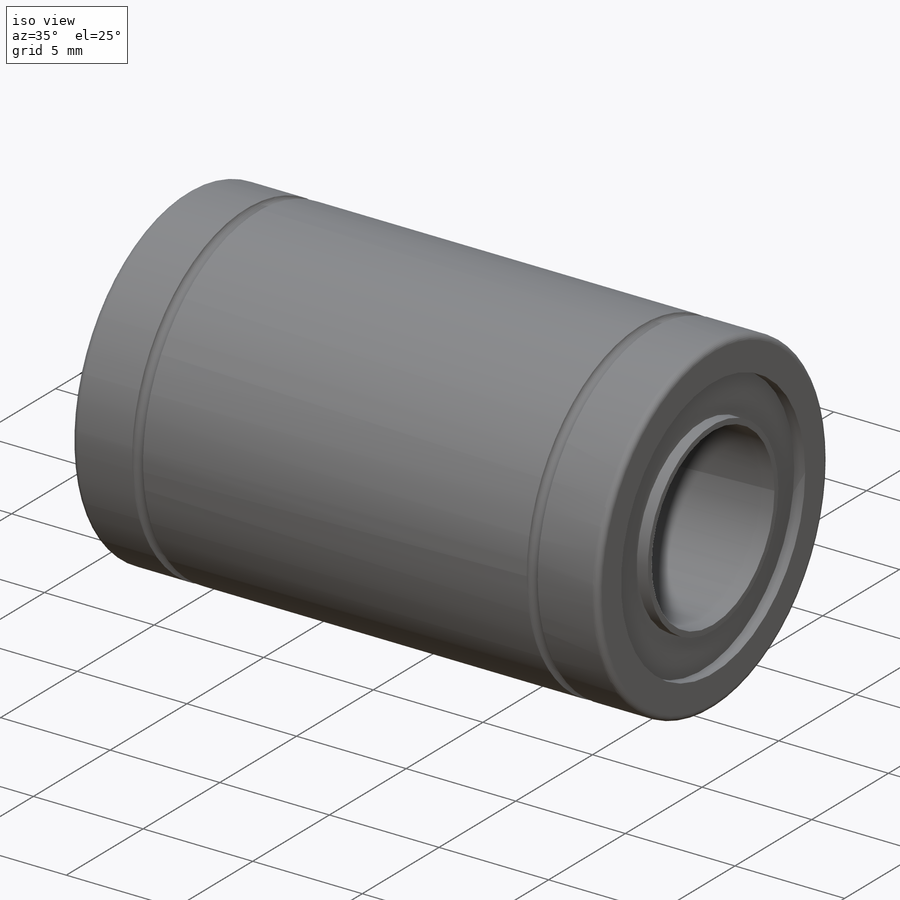
[diagram: iso view]
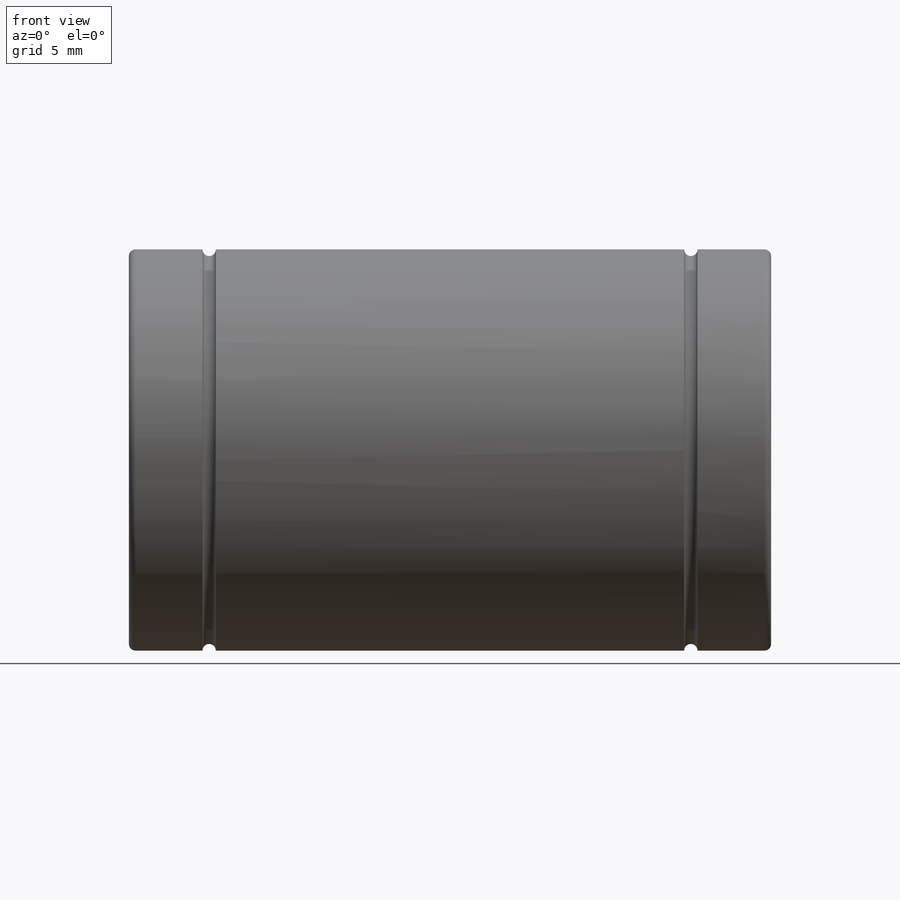
[diagram: front view]
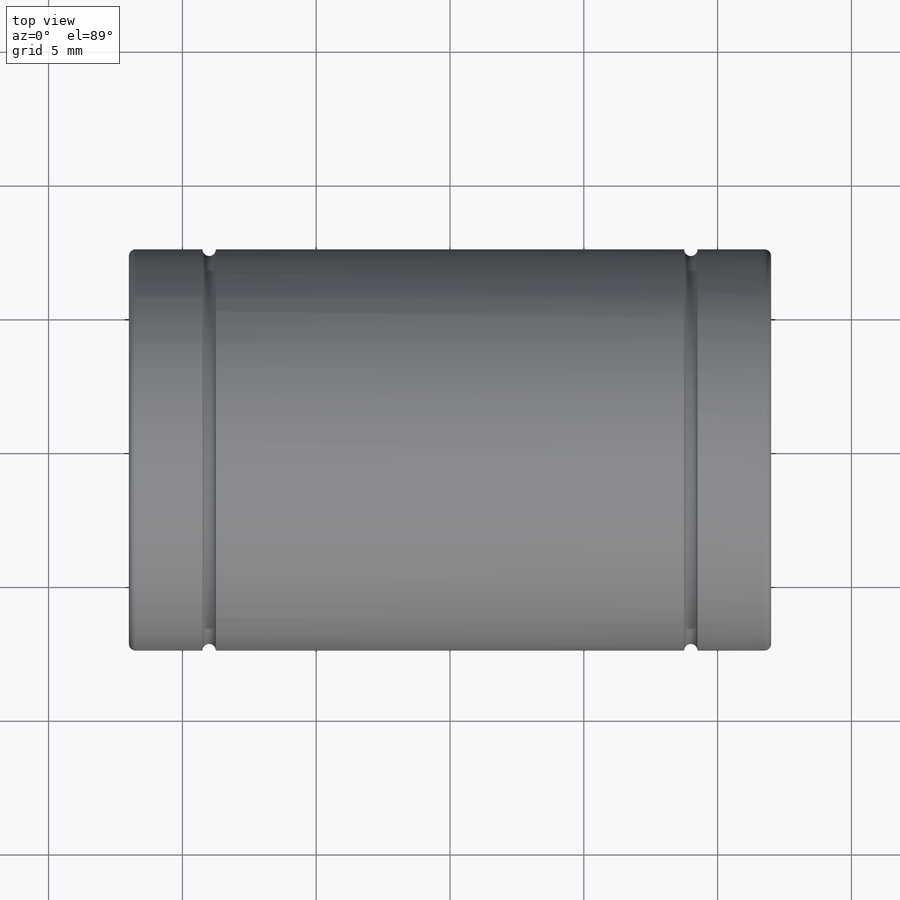
[diagram: top view]
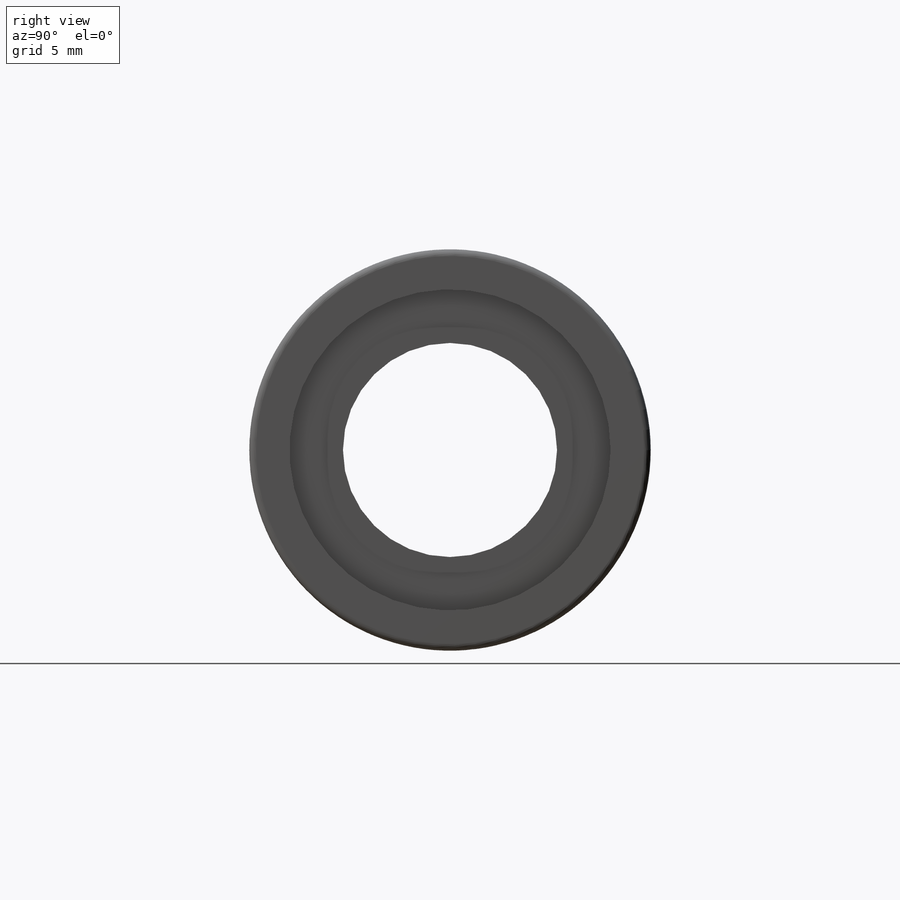
[diagram: right view]
SOLIDWORKS PART (.sldprt)
format: sldprt  version: not decoded by parser v0  size: 310,272 bytes
history: native  units: mm
features: sketch x7, extrude x3, fillet x2, plane x2, sweep x2, material x1 (+16 scaffold rows collapsed)
feature tree (33):
  scaffold x16  (default folders/planes/origin — collapsed)
  material  "Material <not specified>"
  sketch  "Sketch2"  dims[D1=~4.668258mm]
  extrude  "Extrude1"  Depth=12mm
  extrude  "Extrude2"  [1 undecoded]
  sketch  "Sketch2<4>"  dims[D1=12.0mm D2=12.0mm]
  extrude  "Extrude3"  [1 undecoded]
  sketch  "Sketch2<5>"  dims[D1=11.5mm D2=11.5mm]
  fillet  "Fillet3"  Radius=0.25mm
  fillet  "Fillet4"  Radius=0.25mm
  plane  "Plane1"  Offset=3mm
  sketch  "Sketch3"  dims[D1=~0.474213mm]
  sketch  "Sketch4"
  sweep  "Cut-Sweep1"
  plane  "Plane2"  Offset=3mm
  sketch  "Sketch6"  dims[D1=~0.467276mm]
  sketch  "Sketch7"  dims[D1=~11.855352mm]
  sweep  "Cut-Sweep2"
decode coverage: 9 of 14 modeling features carry decoded parameters
note: ~ marks probable driven/reference dimensions
note: 2 parameter values undecoded
note: suppression state not decoded; provenance and decode notes live in map.json
